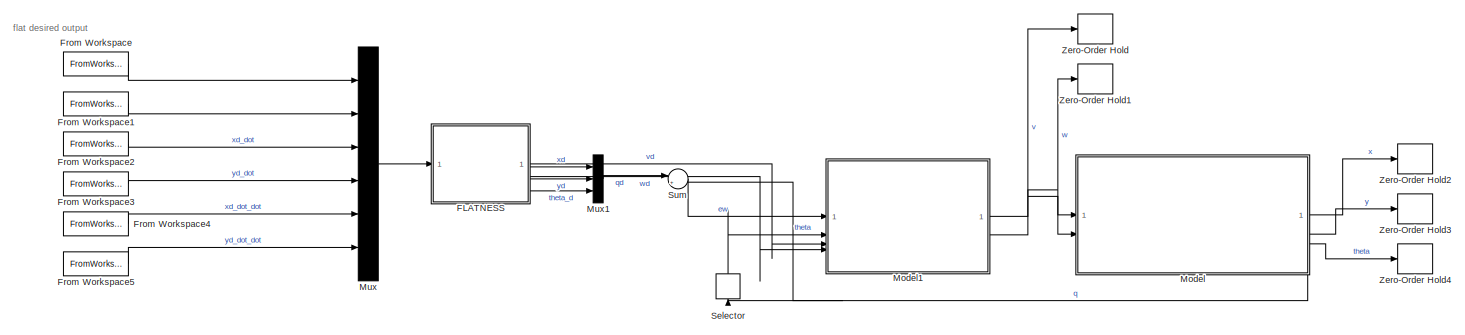
[diagram: root canvas - part 1/2, full width, top band]
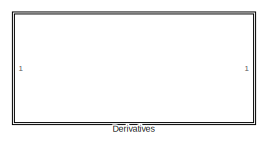
[diagram: root canvas - part 2/2, bottom left region]
MODEL slx_9828b7477c67
KIND model
CONFIG AbsTol = auto
CONFIG EnableMultiTasking = off
CONFIG FixedStep = auto
CONFIG MaxStep = auto
CONFIG MinStep = auto
CONFIG RelTol = 1e-3
CONFIG SampleTimeConstraint = Unconstrained
CONFIG SolverName = VariableStepAuto
CONFIG StartTime = 0.0
CONFIG StopTime = 10.0
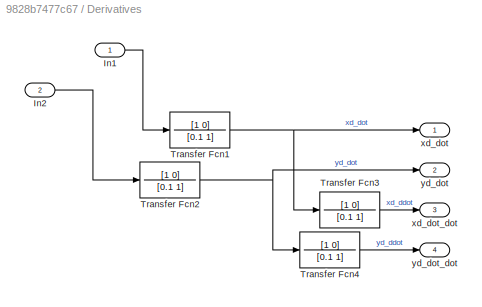
BLOCK [SubSystem] Derivatives
  Commented = on
BLOCK [Inport] Derivatives/In1
BLOCK [Inport] Derivatives/In2
  Port = 2
BLOCK [TransferFcn] Derivatives/Transfer Fcn1
  Denominator = [0.1 1]
  Numerator = [1 0]
BLOCK [TransferFcn] Derivatives/Transfer Fcn2
  Denominator = [0.1 1]
  Numerator = [1 0]
BLOCK [TransferFcn] Derivatives/Transfer Fcn3
  Denominator = [0.1 1]
  Numerator = [1 0]
BLOCK [TransferFcn] Derivatives/Transfer Fcn4
  Denominator = [0.1 1]
  Numerator = [1 0]
BLOCK [Outport] Derivatives/xd_dot
BLOCK [Outport] Derivatives/xd_dot_dot
  Port = 3
BLOCK [Outport] Derivatives/yd_dot
  Port = 2
BLOCK [Outport] Derivatives/yd_dot_dot
  Port = 4
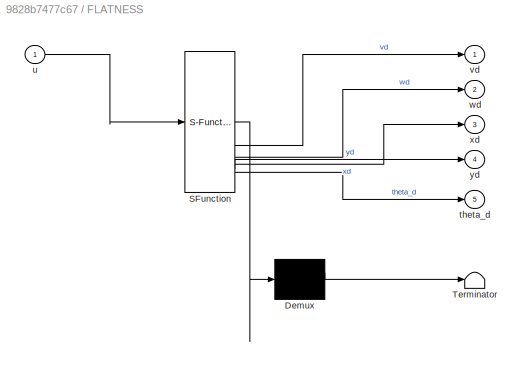
BLOCK [SubSystem] FLATNESS
  ErrorFcn = Stateflow.Translate.translate
  PermitHierarchicalResolution = ExplicitOnly
  SFBlockType = MATLAB Function
  TreatAsAtomicUnit = on
BLOCK [Demux] FLATNESS/ Demux 
  Outputs = 1
BLOCK [S-Function] FLATNESS/ SFunction 
  EnableBusSupport = off
  FunctionName = sf_sfun
  PortCounts = [1 6]
  SFcnIsStateOwnerBlock = off
  SFunctionDeploymentMode = off
  Tag = Stateflow S-Function 2
BLOCK [Terminator] FLATNESS/ Terminator 
BLOCK [Outport] FLATNESS/theta_d
  Port = 5
BLOCK [Inport] FLATNESS/u
BLOCK [Outport] FLATNESS/vd
BLOCK [Outport] FLATNESS/wd
  Port = 2
BLOCK [Outport] FLATNESS/xd
  Port = 3
BLOCK [Outport] FLATNESS/yd
  Port = 4
BLOCK [FromWorkspace] From Workspace
  OutputAfterFinalValue = Holding final value
  SampleTime = Ts
  VariableName = trajectories("trajectory"+sim_trajectory_id).xd_ts
BLOCK [FromWorkspace] From Workspace1
  OutputAfterFinalValue = Holding final value
  SampleTime = Ts
  VariableName = trajectories("trajectory"+sim_trajectory_id).yd_ts
BLOCK [FromWorkspace] From Workspace2
  OutputAfterFinalValue = Holding final value
  SampleTime = Ts
  VariableName = trajectories("trajectory"+sim_trajectory_id).xd_dot_ts
BLOCK [FromWorkspace] From Workspace3
  OutputAfterFinalValue = Holding final value
  SampleTime = Ts
  VariableName = trajectories("trajectory"+sim_trajectory_id).yd_dot_ts
BLOCK [FromWorkspace] From Workspace4
  OutputAfterFinalValue = Holding final value
  SampleTime = Ts
  VariableName = trajectories("trajectory"+sim_trajectory_id).xd_dot_dot_ts
BLOCK [FromWorkspace] From Workspace5
  OutputAfterFinalValue = Holding final value
  SampleTime = Ts
  VariableName = trajectories("trajectory"+sim_trajectory_id).yd_dot_dot_ts
BLOCK [ModelReference] Model
  ModelNameDialog = unicycle.slx
  ModelReferenceVersion = 1.13
  PortSchema = {"entries":[{"content":{"sides":[{"content":{"connectorIds":["In1","In2"]},"type":"ConnectorPlacement.EquallySpacedRectSide","uuid":"ad25d81c-9301-4260-b0e7-6964e2a4144d"},{"content":{"connectorIds":["Out1","Out2","Out3"],"side":"RIGHT"},"type":"ConnectorPlacement.EquallySpacedRectSide","uuid":"e119e278-1a19-4d21-ac57-f30b4b2846c4"},{"content":{"side":"TOP"},"type":"ConnectorPlacement.EquallySpace...<+392ch>
BLOCK [ModelReference] Model1
  ModelNameDialog = controller_traj_nonlin.slx
  ModelReferenceVersion = 1.24
BLOCK [Mux] Mux
  DisplayOption = bar
  Inputs = 6
BLOCK [Mux] Mux1
  DisplayOption = bar
  Inputs = 3
BLOCK [Selector] Selector
  IndexOptions = Index vector (dialog)
  Indices = [3]
  InputPortWidth = 3
  NameLocation = right
  OutputSizes = 1
BLOCK [Sum] Sum
  Inputs = |+-
BLOCK [ZeroOrderHold] Zero-Order Hold
  SampleTime = Ts
BLOCK [ZeroOrderHold] Zero-Order Hold1
  SampleTime = Ts
BLOCK [ZeroOrderHold] Zero-Order Hold2
  SampleTime = Ts
BLOCK [ZeroOrderHold] Zero-Order Hold3
  SampleTime = Ts
BLOCK [ZeroOrderHold] Zero-Order Hold4
  SampleTime = Ts
ANNOTATION (root): flat desired output
LINE Derivatives/In1:1 -> Derivatives/Transfer Fcn1:1
LINE Derivatives/In2:1 -> Derivatives/Transfer Fcn2:1
NET Derivatives/Transfer Fcn1:1 -> Derivatives/Transfer Fcn3:1, Derivatives/xd_dot:1
NET Derivatives/Transfer Fcn2:1 -> Derivatives/Transfer Fcn4:1, Derivatives/yd_dot:1
LINE Derivatives/Transfer Fcn3:1 -> Derivatives/xd_dot_dot:1
LINE Derivatives/Transfer Fcn4:1 -> Derivatives/yd_dot_dot:1
LINE FLATNESS:1 -> Model1:3
LINE FLATNESS:2 -> Model1:4
LINE FLATNESS:3 -> Mux1:1
LINE FLATNESS:4 -> Mux1:2
LINE FLATNESS:5 -> Mux1:3
LINE From Workspace1:1 -> Mux:2
LINE From Workspace2:1 -> Mux:3
LINE From Workspace3:1 -> Mux:4
LINE From Workspace4:1 -> Mux:5
LINE From Workspace5:1 -> Mux:6
LINE From Workspace:1 -> Mux:1
NET Model1:1 -> Model:1, Zero-Order Hold:1
NET Model1:2 -> Model:2, Zero-Order Hold1:1
LINE Model:1 -> Zero-Order Hold2:1
LINE Model:2 -> Zero-Order Hold3:1
LINE Model:3 -> Zero-Order Hold4:1
NET Model:4 -> Selector:1, Sum:2
LINE Mux1:1 -> Sum:1
LINE Mux:1 -> FLATNESS:1
LINE Selector:1 -> Model1:2
LINE Sum:1 -> Model1:1
note: NET lines group one-source signal fan-out (src -> all destinations, sorted); 1:1 wires keep LINE
CHART FLATNESS states=1 transitions=1
  STATE_LABEL 'eML_blk_kernel()'
  STATE_LABEL 'SCRIPT:\nfunction [vd, wd, xd, yd, theta_d]= fcn(u)\n\nxd_dot = u(3);\nyd_dot= u(4);\nxd_dot_dot = u(5);\nyd_dot_dot= u(6);\n\nv = sqrt(xd_dot^2 + yd_dot^2);\nw = (xd_dot*yd_dot_dot - xd_dot_dot*yd_dot) / max(xd_dot^2 + yd_dot^2, 1e-8);\n\n\n\nvd = v;\nwd = w;\nxd = u(1);\nyd = u(2);\ntheta_d = atan2(yd_dot, xd_dot);\n'
CHART  states=0 transitions=0
